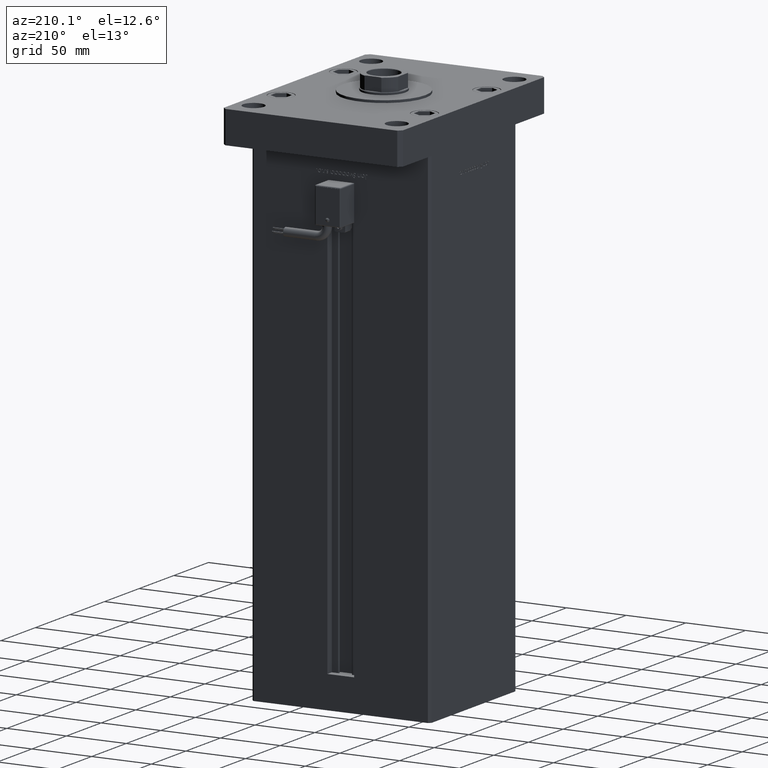
[diagram: clean part render]
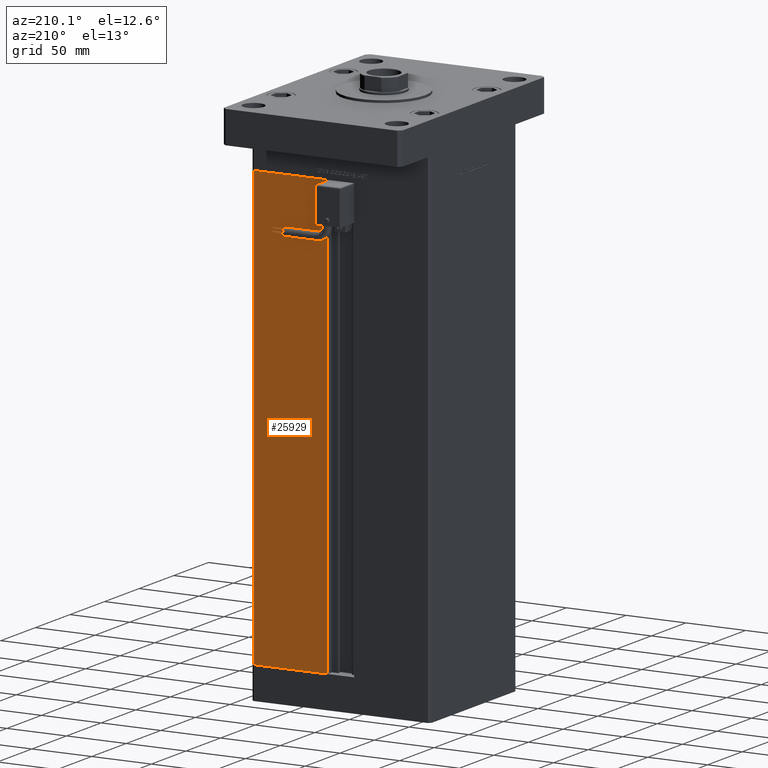
[diagram: same view with one face highlighted and labeled with its STEP entity id]
A machine part, auxiliary view. The second image highlights one B-rep face of the part: STEP entity #25929.
In plain terms, the highlighted planar face has unit normal (-0, -1, 0).
Its self-contained STEP definition (entity closure, byte-faithful):
#1131 = VERTEX_POINT ( 'NONE', #23297 ) ;
#3976 = VERTEX_POINT ( 'NONE', #17825 ) ;
#5206 = PLANE ( 'NONE',  #53648 ) ;
#6109 = CARTESIAN_POINT ( 'NONE',  ( -11.25000000000000178, 62.49999999999999289, 0.000000000000000000 ) ) ;
#8264 = VECTOR ( 'NONE', #51310, 1000.000000000000000 ) ;
#9349 = CARTESIAN_POINT ( 'NONE',  ( 11.25000000000000178, 62.49999999999999289, 0.000000000000000000 ) ) ;
#10586 = EDGE_CURVE ( 'NONE', #1131, #32880, #13051, .T. ) ;
#12315 = ORIENTED_EDGE ( 'NONE', *, *, #10586, .T. ) ;
#13051 = LINE ( 'NONE', #9349, #50534 ) ;
#13495 = VERTEX_POINT ( 'NONE', #35082 ) ;
#17825 = CARTESIAN_POINT ( 'NONE',  ( 73.00000000000001421, 62.50000000000000000, 367.0000000000000000 ) ) ;
#20098 = VECTOR ( 'NONE', #27985, 1000.000000000000000 ) ;
#21841 = CARTESIAN_POINT ( 'NONE',  ( 11.24999999999999467, 62.49999999999999289, 367.0000000000000000 ) ) ;
#23297 = CARTESIAN_POINT ( 'NONE',  ( 11.25000000000000178, 62.49999999999999289, 0.000000000000000000 ) ) ;
#24869 = LINE ( 'NONE', #47327, #8264 ) ;
#25929 = ADVANCED_FACE ( 'NONE', ( #52391 ), #5206, .F. ) ;
#26448 = VECTOR ( 'NONE', #41546, 1000.000000000000000 ) ;
#27366 = CARTESIAN_POINT ( 'NONE',  ( -11.25000000000000178, 62.49999999999999289, 367.0000000000000000 ) ) ;
#27985 = DIRECTION ( 'NONE',  ( -1.000000000000000000, 1.123707514802790025E-16, 0.000000000000000000 ) ) ;
#28188 = CARTESIAN_POINT ( 'NONE',  ( 73.00000000000001421, 62.50000000000000000, 367.0000000000000000 ) ) ;
#28248 = ORIENTED_EDGE ( 'NONE', *, *, #45891, .T. ) ;
#28467 = LINE ( 'NONE', #28188, #26448 ) ;
#30379 = DIRECTION ( 'NONE',  ( -0.000000000000000000, -0.000000000000000000, 1.000000000000000000 ) ) ;
#31914 = DIRECTION ( 'NONE',  ( -1.123707514802790025E-16, -1.000000000000000000, 0.000000000000000000 ) ) ;
#32880 = VERTEX_POINT ( 'NONE', #21841 ) ;
#35082 = CARTESIAN_POINT ( 'NONE',  ( 73.00000000000001421, 62.50000000000000000, 0.000000000000000000 ) ) ;
#37347 = LINE ( 'NONE', #6109, #20098 ) ;
#40000 = ORIENTED_EDGE ( 'NONE', *, *, #48812, .T. ) ;
#41546 = DIRECTION ( 'NONE',  ( -0.000000000000000000, -0.000000000000000000, -1.000000000000000000 ) ) ;
#42378 = EDGE_LOOP ( 'NONE', ( #45854, #12315, #40000, #28248 ) ) ;
#45854 = ORIENTED_EDGE ( 'NONE', *, *, #50119, .T. ) ;
#45891 = EDGE_CURVE ( 'NONE', #3976, #13495, #28467, .T. ) ;
#47327 = CARTESIAN_POINT ( 'NONE',  ( -11.25000000000000178, 62.49999999999999289, 367.0000000000000000 ) ) ;
#48812 = EDGE_CURVE ( 'NONE', #32880, #3976, #24869, .T. ) ;
#49270 = DIRECTION ( 'NONE',  ( 1.000000000000000000, -1.123707514802790025E-16, 0.000000000000000000 ) ) ;
#50119 = EDGE_CURVE ( 'NONE', #13495, #1131, #37347, .T. ) ;
#50534 = VECTOR ( 'NONE', #30379, 1000.000000000000000 ) ;
#51310 = DIRECTION ( 'NONE',  ( 1.000000000000000000, 0.000000000000000000, 0.000000000000000000 ) ) ;
#52391 = FACE_OUTER_BOUND ( 'NONE', #42378, .T. ) ;
#53648 = AXIS2_PLACEMENT_3D ( 'NONE', #27366, #31914, #49270 ) ;